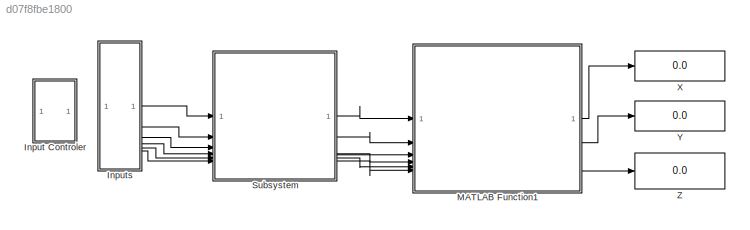
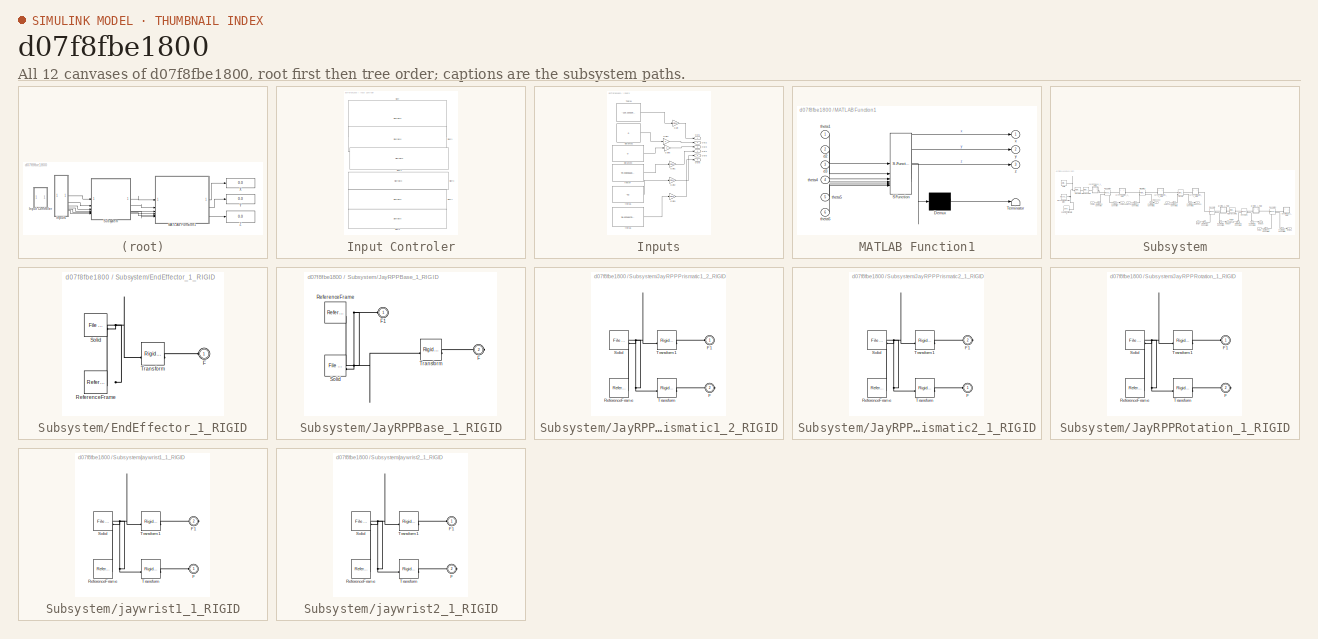
[diagram: thumbnail index - all 12 canvases of the model, root first then tree order]
MODEL slx_d07f8fbe1800
KIND model
CONFIG AbsTol = auto
CONFIG EnableMultiTasking = off
CONFIG FixedStep = auto
CONFIG MaxStep = auto
CONFIG MinStep = auto
CONFIG RelTol = 1e-3
CONFIG SampleTimeConstraint = Unconstrained
CONFIG SolverName = VariableStepAuto
CONFIG StartTime = 0.0
CONFIG StopTime = 10
WORKSPACE source: external: MATLAB File  (data not in archive)
BLOCK [SubSystem] Input Controler
BLOCK [SliderBlock] Input Controler/Slider
  ScaleMax = 180
  ScaleMin = -180
BLOCK [SliderBlock] Input Controler/Slider1
  ScaleMax = 0
  ScaleMin = -50
BLOCK [SliderBlock] Input Controler/Slider2
  ScaleMax = 300
BLOCK [SliderBlock] Input Controler/Slider3
  ScaleMax = 180
  ScaleMin = -180
BLOCK [SliderBlock] Input Controler/Slider4
  ScaleMax = 90
  ScaleMin = -90
BLOCK [SliderBlock] Input Controler/Slider5
  ScaleMax = 180
  ScaleMin = -180
BLOCK [SubSystem] Inputs
BLOCK [Gain] Inputs/Gain
  Gain = pi/180
BLOCK [Gain] Inputs/Gain1
  Gain = pi/180
BLOCK [Gain] Inputs/Gain2
  Gain = pi/180
BLOCK [Gain] Inputs/Gain3
  Gain = pi/180
BLOCK [Gain] Inputs/Gain4
BLOCK [Gain] Inputs/Gain5
BLOCK [Outport] Inputs/Out1
BLOCK [Outport] Inputs/Out2
  Port = 2
BLOCK [Outport] Inputs/Out3
  Port = 3
BLOCK [Outport] Inputs/Out4
  Port = 4
BLOCK [Outport] Inputs/Out5
  Port = 5
BLOCK [Outport] Inputs/Out6
  Port = 6
BLOCK [Constant] Inputs/Theta1
  OutDataTypeStr = double
  Value = -116.2102299389958
BLOCK [Constant] Inputs/distance2
  OutDataTypeStr = double
  Value = 0
BLOCK [Constant] Inputs/distance3
  OutDataTypeStr = double
  Value = 0
BLOCK [Constant] Inputs/theta4
  OutDataTypeStr = double
  Value = 99.83805668016197
BLOCK [Constant] Inputs/theta5
  OutDataTypeStr = double
  Value = -52
BLOCK [Constant] Inputs/theta6
  OutDataTypeStr = double
  Value = 38.62348178137651
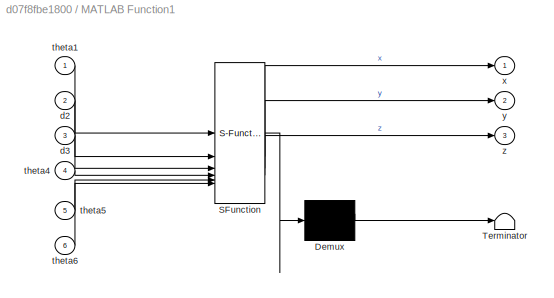
BLOCK [SubSystem] MATLAB Function1
  ErrorFcn = Stateflow.Translate.translate
  PermitHierarchicalResolution = ExplicitOnly
  SFBlockType = MATLAB Function
  TreatAsAtomicUnit = on
BLOCK [Demux] MATLAB Function1/ Demux 
  Outputs = 1
BLOCK [S-Function] MATLAB Function1/ SFunction 
  EnableBusSupport = on
  FunctionName = sf_sfun
  PortCounts = [6 4]
  SFcnIsStateOwnerBlock = off
  SFunctionDeploymentMode = off
  Tag = Stateflow S-Function 1
BLOCK [Terminator] MATLAB Function1/ Terminator 
BLOCK [Inport] MATLAB Function1/d2
  Port = 2
BLOCK [Inport] MATLAB Function1/d3
  Port = 3
BLOCK [Inport] MATLAB Function1/theta1
BLOCK [Inport] MATLAB Function1/theta4
  Port = 4
BLOCK [Inport] MATLAB Function1/theta5
  Port = 5
BLOCK [Inport] MATLAB Function1/theta6
  Port = 6
BLOCK [Outport] MATLAB Function1/x
BLOCK [Outport] MATLAB Function1/y
  Port = 2
BLOCK [Outport] MATLAB Function1/z
  Port = 3
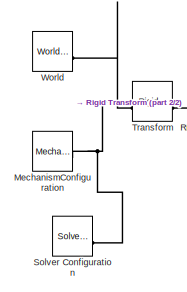
[diagram: Subsystem - part 1/2, middle left region]
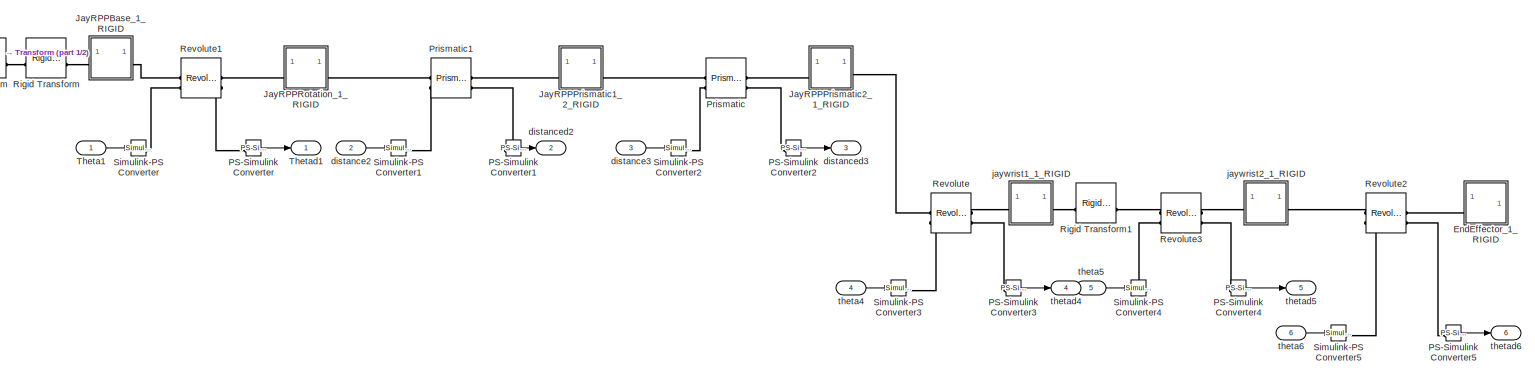
[diagram: Subsystem - part 2/2, most of the canvas]
BLOCK [SubSystem] Subsystem
BLOCK [SubSystem] Subsystem/EndEffector_1_RIGID
BLOCK [PMIOPort] Subsystem/EndEffector_1_RIGID/F
  Side = Left
BLOCK [Reference] Subsystem/EndEffector_1_RIGID/ReferenceFrame  REF=sm_lib/Frames and
Transforms/Reference
Frame
  SourceBlock = sm_lib/Frames and\nTransforms/Reference\nFrame
  SourceType = Reference\nFrame
BLOCK [Reference] Subsystem/EndEffector_1_RIGID/Solid  REF=sm_lib/Body Elements/File Solid
  SourceBlock = sm_lib/Body Elements/File Solid
  SourceType = File Solid
BLOCK [Reference] Subsystem/EndEffector_1_RIGID/Transform  REF=sm_lib/Frames and
Transforms/Rigid
Transform
  SourceBlock = sm_lib/Frames and\nTransforms/Rigid\nTransform
  SourceType = Rigid\nTransform
BLOCK [SubSystem] Subsystem/JayRPPBase_1_RIGID
BLOCK [PMIOPort] Subsystem/JayRPPBase_1_RIGID/F
  Port = 2
  Side = Right
BLOCK [PMIOPort] Subsystem/JayRPPBase_1_RIGID/F1
  Side = Left
BLOCK [Reference] Subsystem/JayRPPBase_1_RIGID/ReferenceFrame  REF=sm_lib/Frames and
Transforms/Reference
Frame
  SourceBlock = sm_lib/Frames and\nTransforms/Reference\nFrame
  SourceType = Reference\nFrame
BLOCK [Reference] Subsystem/JayRPPBase_1_RIGID/Solid  REF=sm_lib/Body Elements/File Solid
  SourceBlock = sm_lib/Body Elements/File Solid
  SourceType = File Solid
BLOCK [Reference] Subsystem/JayRPPBase_1_RIGID/Transform  REF=sm_lib/Frames and
Transforms/Rigid
Transform
  SourceBlock = sm_lib/Frames and\nTransforms/Rigid\nTransform
  SourceType = Rigid\nTransform
BLOCK [SubSystem] Subsystem/JayRPPPrismatic1_2_RIGID
BLOCK [PMIOPort] Subsystem/JayRPPPrismatic1_2_RIGID/F
  Port = 2
  Side = Right
BLOCK [PMIOPort] Subsystem/JayRPPPrismatic1_2_RIGID/F1
  Side = Left
BLOCK [Reference] Subsystem/JayRPPPrismatic1_2_RIGID/ReferenceFrame  REF=sm_lib/Frames and
Transforms/Reference
Frame
  SourceBlock = sm_lib/Frames and\nTransforms/Reference\nFrame
  SourceType = Reference\nFrame
BLOCK [Reference] Subsystem/JayRPPPrismatic1_2_RIGID/Solid  REF=sm_lib/Body Elements/File Solid
  SourceBlock = sm_lib/Body Elements/File Solid
  SourceType = File Solid
BLOCK [Reference] Subsystem/JayRPPPrismatic1_2_RIGID/Transform  REF=sm_lib/Frames and
Transforms/Rigid
Transform
  SourceBlock = sm_lib/Frames and\nTransforms/Rigid\nTransform
  SourceType = Rigid\nTransform
BLOCK [Reference] Subsystem/JayRPPPrismatic1_2_RIGID/Transform1  REF=sm_lib/Frames and
Transforms/Rigid
Transform
  SourceBlock = sm_lib/Frames and\nTransforms/Rigid\nTransform
  SourceType = Rigid\nTransform
BLOCK [SubSystem] Subsystem/JayRPPPrismatic2_1_RIGID
BLOCK [PMIOPort] Subsystem/JayRPPPrismatic2_1_RIGID/F
  Side = Left
BLOCK [PMIOPort] Subsystem/JayRPPPrismatic2_1_RIGID/F1
  Port = 2
  Side = Right
BLOCK [Reference] Subsystem/JayRPPPrismatic2_1_RIGID/ReferenceFrame  REF=sm_lib/Frames and
Transforms/Reference
Frame
  SourceBlock = sm_lib/Frames and\nTransforms/Reference\nFrame
  SourceType = Reference\nFrame
BLOCK [Reference] Subsystem/JayRPPPrismatic2_1_RIGID/Solid  REF=sm_lib/Body Elements/File Solid
  SourceBlock = sm_lib/Body Elements/File Solid
  SourceType = File Solid
BLOCK [Reference] Subsystem/JayRPPPrismatic2_1_RIGID/Transform  REF=sm_lib/Frames and
Transforms/Rigid
Transform
  SourceBlock = sm_lib/Frames and\nTransforms/Rigid\nTransform
  SourceType = Rigid\nTransform
BLOCK [Reference] Subsystem/JayRPPPrismatic2_1_RIGID/Transform1  REF=sm_lib/Frames and
Transforms/Rigid
Transform
  SourceBlock = sm_lib/Frames and\nTransforms/Rigid\nTransform
  SourceType = Rigid\nTransform
BLOCK [SubSystem] Subsystem/JayRPPRotation_1_RIGID
BLOCK [PMIOPort] Subsystem/JayRPPRotation_1_RIGID/F
  Port = 2
  Side = Right
BLOCK [PMIOPort] Subsystem/JayRPPRotation_1_RIGID/F1
  Side = Left
BLOCK [Reference] Subsystem/JayRPPRotation_1_RIGID/ReferenceFrame  REF=sm_lib/Frames and
Transforms/Reference
Frame
  SourceBlock = sm_lib/Frames and\nTransforms/Reference\nFrame
  SourceType = Reference\nFrame
BLOCK [Reference] Subsystem/JayRPPRotation_1_RIGID/Solid  REF=sm_lib/Body Elements/File Solid
  SourceBlock = sm_lib/Body Elements/File Solid
  SourceType = File Solid
BLOCK [Reference] Subsystem/JayRPPRotation_1_RIGID/Transform  REF=sm_lib/Frames and
Transforms/Rigid
Transform
  SourceBlock = sm_lib/Frames and\nTransforms/Rigid\nTransform
  SourceType = Rigid\nTransform
BLOCK [Reference] Subsystem/JayRPPRotation_1_RIGID/Transform1  REF=sm_lib/Frames and
Transforms/Rigid
Transform
  SourceBlock = sm_lib/Frames and\nTransforms/Rigid\nTransform
  SourceType = Rigid\nTransform
BLOCK [Reference] Subsystem/MechanismConfiguration  REF=sm_lib/Utilities/Mechanism
Configuration
  SourceBlock = sm_lib/Utilities/Mechanism\nConfiguration
  SourceType = Mechanism\nConfiguration
BLOCK [Reference] Subsystem/PS-Simulink Converter  REF=nesl_utility/PS-Simulink
Converter
  SourceBlock = nesl_utility/PS-Simulink\nConverter
  SourceType = PS-Simulink\nConverter
BLOCK [Reference] Subsystem/PS-Simulink Converter1  REF=nesl_utility/PS-Simulink
Converter
  SourceBlock = nesl_utility/PS-Simulink\nConverter
  SourceType = PS-Simulink\nConverter
BLOCK [Reference] Subsystem/PS-Simulink Converter2  REF=nesl_utility/PS-Simulink
Converter
  SourceBlock = nesl_utility/PS-Simulink\nConverter
  SourceType = PS-Simulink\nConverter
BLOCK [Reference] Subsystem/PS-Simulink Converter3  REF=nesl_utility/PS-Simulink
Converter
  SourceBlock = nesl_utility/PS-Simulink\nConverter
  SourceType = PS-Simulink\nConverter
BLOCK [Reference] Subsystem/PS-Simulink Converter4  REF=nesl_utility/PS-Simulink
Converter
  SourceBlock = nesl_utility/PS-Simulink\nConverter
  SourceType = PS-Simulink\nConverter
BLOCK [Reference] Subsystem/PS-Simulink Converter5  REF=nesl_utility/PS-Simulink
Converter
  SourceBlock = nesl_utility/PS-Simulink\nConverter
  SourceType = PS-Simulink\nConverter
BLOCK [Reference] Subsystem/Prismatic  REF=sm_lib/Joints/Prismatic
Joint
  SourceBlock = sm_lib/Joints/Prismatic\nJoint
  SourceType = Prismatic\nJoint
BLOCK [Reference] Subsystem/Prismatic1  REF=sm_lib/Joints/Prismatic
Joint
  SourceBlock = sm_lib/Joints/Prismatic\nJoint
  SourceType = Prismatic\nJoint
BLOCK [Reference] Subsystem/Revolute  REF=sm_lib/Joints/Revolute Joint
  SourceBlock = sm_lib/Joints/Revolute Joint
  SourceType = Revolute Joint
BLOCK [Reference] Subsystem/Revolute1  REF=sm_lib/Joints/Revolute Joint
  SourceBlock = sm_lib/Joints/Revolute Joint
  SourceType = Revolute Joint
BLOCK [Reference] Subsystem/Revolute2  REF=sm_lib/Joints/Revolute Joint
  SourceBlock = sm_lib/Joints/Revolute Joint
  SourceType = Revolute Joint
BLOCK [Reference] Subsystem/Revolute3  REF=sm_lib/Joints/Revolute Joint
  SourceBlock = sm_lib/Joints/Revolute Joint
  SourceType = Revolute Joint
BLOCK [Reference] Subsystem/Rigid Transform  REF=sm_lib/Frames and
Transforms/Rigid
Transform
  SourceBlock = sm_lib/Frames and\nTransforms/Rigid\nTransform
  SourceType = Rigid\nTransform
BLOCK [Reference] Subsystem/Rigid Transform1  REF=sm_lib/Frames and
Transforms/Rigid
Transform
  SourceBlock = sm_lib/Frames and\nTransforms/Rigid\nTransform
  SourceType = Rigid\nTransform
BLOCK [Reference] Subsystem/Simulink-PS Converter  REF=nesl_utility/Simulink-PS
Converter
  SourceBlock = nesl_utility/Simulink-PS\nConverter
  SourceType = Simulink-PS\nConverter
BLOCK [Reference] Subsystem/Simulink-PS Converter1  REF=nesl_utility/Simulink-PS
Converter
  SourceBlock = nesl_utility/Simulink-PS\nConverter
  SourceType = Simulink-PS\nConverter
BLOCK [Reference] Subsystem/Simulink-PS Converter2  REF=nesl_utility/Simulink-PS
Converter
  SourceBlock = nesl_utility/Simulink-PS\nConverter
  SourceType = Simulink-PS\nConverter
BLOCK [Reference] Subsystem/Simulink-PS Converter3  REF=nesl_utility/Simulink-PS
Converter
  SourceBlock = nesl_utility/Simulink-PS\nConverter
  SourceType = Simulink-PS\nConverter
BLOCK [Reference] Subsystem/Simulink-PS Converter4  REF=nesl_utility/Simulink-PS
Converter
  SourceBlock = nesl_utility/Simulink-PS\nConverter
  SourceType = Simulink-PS\nConverter
BLOCK [Reference] Subsystem/Simulink-PS Converter5  REF=nesl_utility/Simulink-PS
Converter
  SourceBlock = nesl_utility/Simulink-PS\nConverter
  SourceType = Simulink-PS\nConverter
BLOCK [Reference] Subsystem/Solver Configuration  REF=nesl_utility/Solver
Configuration
  SourceBlock = nesl_utility/Solver\nConfiguration
  SourceType = Solver\nConfiguration
BLOCK [Inport] Subsystem/Theta1
BLOCK [Outport] Subsystem/Thetad1
BLOCK [Reference] Subsystem/Transform  REF=sm_lib/Frames and
Transforms/Rigid
Transform
  SourceBlock = sm_lib/Frames and\nTransforms/Rigid\nTransform
  SourceType = Rigid\nTransform
BLOCK [Reference] Subsystem/World  REF=sm_lib/Frames and
Transforms/World Frame
  SourceBlock = sm_lib/Frames and\nTransforms/World Frame
  SourceType = World Frame
BLOCK [Inport] Subsystem/distance2
  Port = 2
BLOCK [Inport] Subsystem/distance3
  Port = 3
BLOCK [Outport] Subsystem/distanced2
  Port = 2
BLOCK [Outport] Subsystem/distanced3
  Port = 3
BLOCK [SubSystem] Subsystem/jaywrist1_1_RIGID
BLOCK [PMIOPort] Subsystem/jaywrist1_1_RIGID/F
  Side = Left
BLOCK [PMIOPort] Subsystem/jaywrist1_1_RIGID/F1
  Port = 2
  Side = Right
BLOCK [Reference] Subsystem/jaywrist1_1_RIGID/ReferenceFrame  REF=sm_lib/Frames and
Transforms/Reference
Frame
  SourceBlock = sm_lib/Frames and\nTransforms/Reference\nFrame
  SourceType = Reference\nFrame
BLOCK [Reference] Subsystem/jaywrist1_1_RIGID/Solid  REF=sm_lib/Body Elements/File Solid
  SourceBlock = sm_lib/Body Elements/File Solid
  SourceType = File Solid
BLOCK [Reference] Subsystem/jaywrist1_1_RIGID/Transform  REF=sm_lib/Frames and
Transforms/Rigid
Transform
  SourceBlock = sm_lib/Frames and\nTransforms/Rigid\nTransform
  SourceType = Rigid\nTransform
BLOCK [Reference] Subsystem/jaywrist1_1_RIGID/Transform1  REF=sm_lib/Frames and
Transforms/Rigid
Transform
  SourceBlock = sm_lib/Frames and\nTransforms/Rigid\nTransform
  SourceType = Rigid\nTransform
BLOCK [SubSystem] Subsystem/jaywrist2_1_RIGID
BLOCK [PMIOPort] Subsystem/jaywrist2_1_RIGID/F
  Port = 2
  Side = Right
BLOCK [PMIOPort] Subsystem/jaywrist2_1_RIGID/F1
  Side = Left
BLOCK [Reference] Subsystem/jaywrist2_1_RIGID/ReferenceFrame  REF=sm_lib/Frames and
Transforms/Reference
Frame
  SourceBlock = sm_lib/Frames and\nTransforms/Reference\nFrame
  SourceType = Reference\nFrame
BLOCK [Reference] Subsystem/jaywrist2_1_RIGID/Solid  REF=sm_lib/Body Elements/File Solid
  SourceBlock = sm_lib/Body Elements/File Solid
  SourceType = File Solid
BLOCK [Reference] Subsystem/jaywrist2_1_RIGID/Transform  REF=sm_lib/Frames and
Transforms/Rigid
Transform
  SourceBlock = sm_lib/Frames and\nTransforms/Rigid\nTransform
  SourceType = Rigid\nTransform
BLOCK [Reference] Subsystem/jaywrist2_1_RIGID/Transform1  REF=sm_lib/Frames and
Transforms/Rigid
Transform
  SourceBlock = sm_lib/Frames and\nTransforms/Rigid\nTransform
  SourceType = Rigid\nTransform
BLOCK [Inport] Subsystem/theta4
  Port = 4
BLOCK [Inport] Subsystem/theta5
  Port = 5
BLOCK [Inport] Subsystem/theta6
  Port = 6
BLOCK [Outport] Subsystem/thetad4
  Port = 4
BLOCK [Outport] Subsystem/thetad5
  Port = 5
BLOCK [Outport] Subsystem/thetad6
  Port = 6
BLOCK [Display] X
  Decimation = 1
BLOCK [Display] Y
  Decimation = 1
BLOCK [Display] Z
  Decimation = 1
LINE Inputs/Gain1:1 -> Inputs/Out4:1
LINE Inputs/Gain2:1 -> Inputs/Out5:1
LINE Inputs/Gain3:1 -> Inputs/Out6:1
LINE Inputs/Gain4:1 -> Inputs/Out2:1
LINE Inputs/Gain5:1 -> Inputs/Out3:1
LINE Inputs/Gain:1 -> Inputs/Out1:1
LINE Inputs/Theta1:1 -> Inputs/Gain:1
LINE Inputs/distance2:1 -> Inputs/Gain4:1
LINE Inputs/distance3:1 -> Inputs/Gain5:1
LINE Inputs/theta4:1 -> Inputs/Gain1:1
LINE Inputs/theta5:1 -> Inputs/Gain2:1
LINE Inputs/theta6:1 -> Inputs/Gain3:1
LINE Inputs:1 -> Subsystem:1
LINE Inputs:2 -> Subsystem:2
LINE Inputs:3 -> Subsystem:3
LINE Inputs:4 -> Subsystem:4
LINE Inputs:5 -> Subsystem:5
LINE Inputs:6 -> Subsystem:6
LINE MATLAB Function1:1 -> X:1
LINE MATLAB Function1:2 -> Y:1
LINE MATLAB Function1:3 -> Z:1
LINE Subsystem/PS-Simulink Converter1:1 -> Subsystem/distanced2:1
LINE Subsystem/PS-Simulink Converter2:1 -> Subsystem/distanced3:1
LINE Subsystem/PS-Simulink Converter3:1 -> Subsystem/thetad4:1
LINE Subsystem/PS-Simulink Converter4:1 -> Subsystem/thetad5:1
LINE Subsystem/PS-Simulink Converter5:1 -> Subsystem/thetad6:1
LINE Subsystem/PS-Simulink Converter:1 -> Subsystem/Thetad1:1
LINE Subsystem/Theta1:1 -> Subsystem/Simulink-PS Converter:1
LINE Subsystem/distance2:1 -> Subsystem/Simulink-PS Converter1:1
LINE Subsystem/distance3:1 -> Subsystem/Simulink-PS Converter2:1
LINE Subsystem/theta4:1 -> Subsystem/Simulink-PS Converter3:1
LINE Subsystem/theta5:1 -> Subsystem/Simulink-PS Converter4:1
LINE Subsystem/theta6:1 -> Subsystem/Simulink-PS Converter5:1
LINE Subsystem:1 -> MATLAB Function1:1
LINE Subsystem:2 -> MATLAB Function1:2
LINE Subsystem:3 -> MATLAB Function1:3
LINE Subsystem:4 -> MATLAB Function1:4
LINE Subsystem:5 -> MATLAB Function1:5
LINE Subsystem:6 -> MATLAB Function1:6
PLINE Subsystem/EndEffector_1_RIGID/F:RConn1 -- Subsystem/EndEffector_1_RIGID/Transform:RConn1
PNET net1: Subsystem/EndEffector_1_RIGID/ReferenceFrame:RConn1 -- Subsystem/EndEffector_1_RIGID/Solid:RConn1 -- Subsystem/EndEffector_1_RIGID/Transform:LConn1
PLINE Subsystem/EndEffector_1_RIGID:LConn1 -- Subsystem/Revolute2:RConn1
PNET net2: Subsystem/JayRPPBase_1_RIGID/F1:RConn1 -- Subsystem/JayRPPBase_1_RIGID/ReferenceFrame:RConn1 -- Subsystem/JayRPPBase_1_RIGID/Solid:RConn1 -- Subsystem/JayRPPBase_1_RIGID/Transform:LConn1
PLINE Subsystem/JayRPPBase_1_RIGID/F:RConn1 -- Subsystem/JayRPPBase_1_RIGID/Transform:RConn1
PLINE Subsystem/JayRPPBase_1_RIGID:LConn1 -- Subsystem/Rigid Transform:RConn1
PLINE Subsystem/JayRPPBase_1_RIGID:RConn1 -- Subsystem/Revolute1:LConn1
PLINE Subsystem/JayRPPPrismatic1_2_RIGID/F1:RConn1 -- Subsystem/JayRPPPrismatic1_2_RIGID/Transform1:RConn1
PLINE Subsystem/JayRPPPrismatic1_2_RIGID/F:RConn1 -- Subsystem/JayRPPPrismatic1_2_RIGID/Transform:RConn1
PNET net3: Subsystem/JayRPPPrismatic1_2_RIGID/ReferenceFrame:RConn1 -- Subsystem/JayRPPPrismatic1_2_RIGID/Solid:RConn1 -- Subsystem/JayRPPPrismatic1_2_RIGID/Transform1:LConn1 -- Subsystem/JayRPPPrismatic1_2_RIGID/Transform:LConn1
PLINE Subsystem/JayRPPPrismatic1_2_RIGID:LConn1 -- Subsystem/Prismatic1:RConn1
PLINE Subsystem/JayRPPPrismatic1_2_RIGID:RConn1 -- Subsystem/Prismatic:LConn1
PLINE Subsystem/JayRPPPrismatic2_1_RIGID/F1:RConn1 -- Subsystem/JayRPPPrismatic2_1_RIGID/Transform1:RConn1
PLINE Subsystem/JayRPPPrismatic2_1_RIGID/F:RConn1 -- Subsystem/JayRPPPrismatic2_1_RIGID/Transform:RConn1
PNET net4: Subsystem/JayRPPPrismatic2_1_RIGID/ReferenceFrame:RConn1 -- Subsystem/JayRPPPrismatic2_1_RIGID/Solid:RConn1 -- Subsystem/JayRPPPrismatic2_1_RIGID/Transform1:LConn1 -- Subsystem/JayRPPPrismatic2_1_RIGID/Transform:LConn1
PLINE Subsystem/JayRPPPrismatic2_1_RIGID:LConn1 -- Subsystem/Prismatic:RConn1
PLINE Subsystem/JayRPPPrismatic2_1_RIGID:RConn1 -- Subsystem/Revolute:LConn1
PLINE Subsystem/JayRPPRotation_1_RIGID/F1:RConn1 -- Subsystem/JayRPPRotation_1_RIGID/Transform1:RConn1
PLINE Subsystem/JayRPPRotation_1_RIGID/F:RConn1 -- Subsystem/JayRPPRotation_1_RIGID/Transform:RConn1
PNET net5: Subsystem/JayRPPRotation_1_RIGID/ReferenceFrame:RConn1 -- Subsystem/JayRPPRotation_1_RIGID/Solid:RConn1 -- Subsystem/JayRPPRotation_1_RIGID/Transform1:LConn1 -- Subsystem/JayRPPRotation_1_RIGID/Transform:LConn1
PLINE Subsystem/JayRPPRotation_1_RIGID:LConn1 -- Subsystem/Revolute1:RConn1
PLINE Subsystem/JayRPPRotation_1_RIGID:RConn1 -- Subsystem/Prismatic1:LConn1
PNET net6: Subsystem/MechanismConfiguration:RConn1 -- Subsystem/Solver Configuration:RConn1 -- Subsystem/Transform:LConn1 -- Subsystem/World:RConn1
PLINE Subsystem/PS-Simulink Converter1:LConn1 -- Subsystem/Prismatic1:RConn2
PLINE Subsystem/PS-Simulink Converter2:LConn1 -- Subsystem/Prismatic:RConn2
PLINE Subsystem/PS-Simulink Converter3:LConn1 -- Subsystem/Revolute:RConn2
PLINE Subsystem/PS-Simulink Converter4:LConn1 -- Subsystem/Revolute3:RConn2
PLINE Subsystem/PS-Simulink Converter5:LConn1 -- Subsystem/Revolute2:RConn2
PLINE Subsystem/PS-Simulink Converter:LConn1 -- Subsystem/Revolute1:RConn2
PLINE Subsystem/Prismatic1:LConn2 -- Subsystem/Simulink-PS Converter1:RConn1
PLINE Subsystem/Prismatic:LConn2 -- Subsystem/Simulink-PS Converter2:RConn1
PLINE Subsystem/Revolute1:LConn2 -- Subsystem/Simulink-PS Converter:RConn1
PLINE Subsystem/Revolute2:LConn1 -- Subsystem/jaywrist2_1_RIGID:RConn1
PLINE Subsystem/Revolute2:LConn2 -- Subsystem/Simulink-PS Converter5:RConn1
PLINE Subsystem/Revolute3:LConn1 -- Subsystem/Rigid Transform1:RConn1
PLINE Subsystem/Revolute3:LConn2 -- Subsystem/Simulink-PS Converter4:RConn1
PLINE Subsystem/Revolute3:RConn1 -- Subsystem/jaywrist2_1_RIGID:LConn1
PLINE Subsystem/Revolute:LConn2 -- Subsystem/Simulink-PS Converter3:RConn1
PLINE Subsystem/Revolute:RConn1 -- Subsystem/jaywrist1_1_RIGID:LConn1
PLINE Subsystem/Rigid Transform1:LConn1 -- Subsystem/jaywrist1_1_RIGID:RConn1
PLINE Subsystem/Rigid Transform:LConn1 -- Subsystem/Transform:RConn1
PLINE Subsystem/jaywrist1_1_RIGID/F1:RConn1 -- Subsystem/jaywrist1_1_RIGID/Transform1:RConn1
PLINE Subsystem/jaywrist1_1_RIGID/F:RConn1 -- Subsystem/jaywrist1_1_RIGID/Transform:RConn1
PNET net7: Subsystem/jaywrist1_1_RIGID/ReferenceFrame:RConn1 -- Subsystem/jaywrist1_1_RIGID/Solid:RConn1 -- Subsystem/jaywrist1_1_RIGID/Transform1:LConn1 -- Subsystem/jaywrist1_1_RIGID/Transform:LConn1
PLINE Subsystem/jaywrist2_1_RIGID/F1:RConn1 -- Subsystem/jaywrist2_1_RIGID/Transform1:RConn1
PLINE Subsystem/jaywrist2_1_RIGID/F:RConn1 -- Subsystem/jaywrist2_1_RIGID/Transform:RConn1
PNET net8: Subsystem/jaywrist2_1_RIGID/ReferenceFrame:RConn1 -- Subsystem/jaywrist2_1_RIGID/Solid:RConn1 -- Subsystem/jaywrist2_1_RIGID/Transform1:LConn1 -- Subsystem/jaywrist2_1_RIGID/Transform:LConn1
note: PNET lines group multi-terminal physical nets as a canonical sorted terminal list (undirected conserving connections); 2-terminal nets keep the pairwise PLINE form
CHART MATLAB Function1 states=1 transitions=1
  STATE_LABEL 'eML_blk_kernel()'
  STATE_LABEL 'SCRIPT:\nfunction [x,y, z]  = forwardKinematics(theta1,d2,d3,theta4,theta5,theta6)\n\n%set geometric parameters for arm\n%values are in mm and rad and numbers rounded.\n\na2 = 266;\n\n\n\nalpha2 = -pi/2;\nalpha3 = -pi/2;\nalpha5 = pi/2;\nalpha6 = -pi/2;\n\nd1 = -546;\n%height off the ground\nh = 143;\nd4 = 0;%45 - d3;\nd5 = 0;%38 - d4;\nd6 = h;% - d5;\n\n%Get transform\n%HT = HT(a, alpha, theta, d)\nT0 = HT(0,0,theta1,d1...<+276ch>'
CHART  states=0 transitions=0
